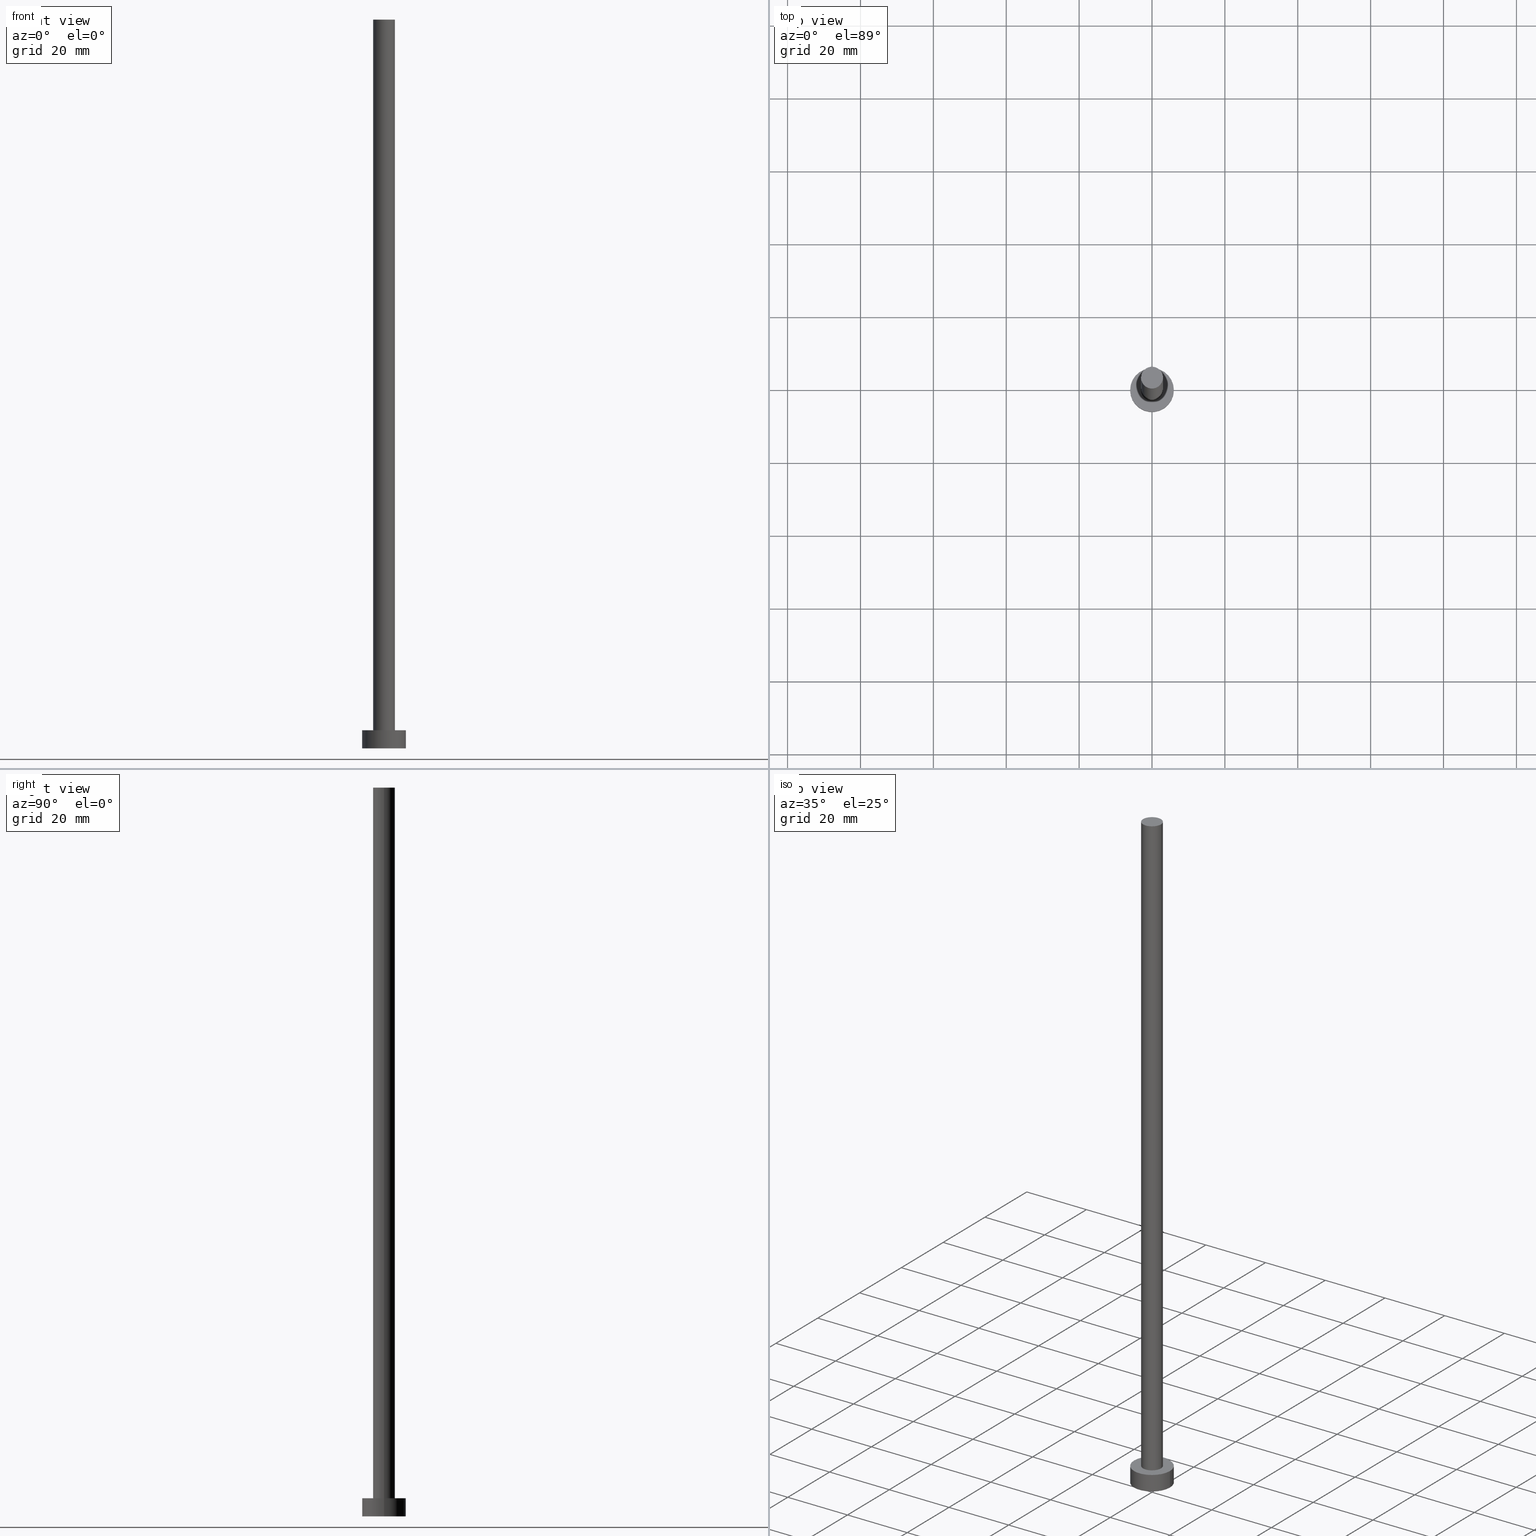
[diagram: canonical four-view strip — front | top / right | iso, engineering-drawing reading convention]
A machine part, canonical four-view strip (front | top / right | iso — engineering-drawing reading convention). The complete STEP part file that produces these views, byte-faithful:
ISO-10303-21;
HEADER;
FILE_DESCRIPTION (( 'STEP AP203' ),
    '1' );
FILE_NAME ('84f4.STEP',
    '2023-02-13T12:38:01',
    ( '' ),
    ( '' ),
    'SwSTEP 2.0',
    'SolidWorks 2019',
    '' );
FILE_SCHEMA (( 'CONFIG_CONTROL_DESIGN' ));
ENDSEC;

DATA;
#1 = DIRECTION ( 'NONE',  ( -0.000000000000000000, -0.000000000000000000, -1.000000000000000000 ) ) ;
#2 = DATE_TIME_ROLE ( 'creation_date' ) ;
#3 = VECTOR ( 'NONE', #108, 1000.000000000000000 ) ;
#4 = ADVANCED_FACE ( 'NONE', ( #241 ), #120, .F. ) ;
#5 = ORIENTED_EDGE ( 'NONE', *, *, #202, .F. ) ;
#6 = PERSON_AND_ORGANIZATION_ROLE ( 'design_supplier' ) ;
#7 = APPROVAL ( #156, 'NEUR�EN�' ) ;
#8 = AXIS2_PLACEMENT_3D ( 'NONE', #247, #142, #224 ) ;
#9 = PLANE ( 'NONE',  #129 ) ;
#10 = FACE_OUTER_BOUND ( 'NONE', #64, .T. ) ;
#11 = VERTEX_POINT ( 'NONE', #62 ) ;
#12 = CARTESIAN_POINT ( 'NONE',  ( 6.000000000000000888, 7.347880794884120722E-16, 5.000000000000000000 ) ) ;
#13 = DIRECTION ( 'NONE',  ( 1.000000000000000000, 0.000000000000000000, 0.000000000000000000 ) ) ;
#14 = LOCAL_TIME ( 13, 38, 1.000000000000000000, #40 ) ;
#15 = COORDINATED_UNIVERSAL_TIME_OFFSET ( 1, 0, .AHEAD. ) ;
#16 =( NAMED_UNIT ( * ) SI_UNIT ( $, .STERADIAN. ) SOLID_ANGLE_UNIT ( ) );
#17 = ORIENTED_EDGE ( 'NONE', *, *, #238, .F. ) ;
#18 = AXIS2_PLACEMENT_3D ( 'NONE', #249, #248, #13 ) ;
#19 = PRODUCT ( '84f4', '84f4', '', ( #88 ) ) ;
#20 = APPROVAL_DATE_TIME ( #166, #217 ) ;
#21 = CALENDAR_DATE ( 2023, 13, 2 ) ;
#22 = ORGANIZATION ( 'NEUR�EN�', 'NEUR�EN�', '' ) ;
#23 = DATE_AND_TIME ( #210, #251 ) ;
#24 = ORIENTED_EDGE ( 'NONE', *, *, #176, .F. ) ;
#25 = EDGE_CURVE ( 'NONE', #153, #157, #72, .T. ) ;
#26 = DIRECTION ( 'NONE',  ( 1.000000000000000000, 0.000000000000000000, 0.000000000000000000 ) ) ;
#27 = MANIFOLD_SOLID_BREP ( 'P�idat vysunut�m3', #112 ) ;
#28 = SHAPE_DEFINITION_REPRESENTATION ( #234, #203 ) ;
#29 = AXIS2_PLACEMENT_3D ( 'NONE', #139, #175, #26 ) ;
#30 = ORIENTED_EDGE ( 'NONE', *, *, #185, .T. ) ;
#31 = PLANE ( 'NONE',  #178 ) ;
#32 = PRODUCT_DEFINITION ( 'NEZN�M�', '', #102, #136 ) ;
#33 = DIRECTION ( 'NONE',  ( 0.000000000000000000, 0.000000000000000000, 1.000000000000000000 ) ) ;
#34 = ORIENTED_EDGE ( 'NONE', *, *, #143, .T. ) ;
#35 = ADVANCED_FACE ( 'NONE', ( #196, #97 ), #9, .T. ) ;
#36 = LINE ( 'NONE', #122, #3 ) ;
#37 = CC_DESIGN_APPROVAL ( #217, ( #32 ) ) ;
#38 = ORIENTED_EDGE ( 'NONE', *, *, #67, .T. ) ;
#39 = CYLINDRICAL_SURFACE ( 'NONE', #41, 6.000000000000000888 ) ;
#40 = COORDINATED_UNIVERSAL_TIME_OFFSET ( 1, 0, .AHEAD. ) ;
#41 = AXIS2_PLACEMENT_3D ( 'NONE', #75, #186, #91 ) ;
#42 = CARTESIAN_POINT ( 'NONE',  ( 0.000000000000000000, 0.000000000000000000, 200.0000000000000000 ) ) ;
#43 = ORIENTED_EDGE ( 'NONE', *, *, #56, .F. ) ;
#44 = CIRCLE ( 'NONE', #82, 6.000000000000000888 ) ;
#45 = ORIENTED_EDGE ( 'NONE', *, *, #104, .T. ) ;
#46 = APPROVAL ( #61, 'NEUR�EN�' ) ;
#47 = SECURITY_CLASSIFICATION_LEVEL ( 'unclassified' ) ;
#48 = CARTESIAN_POINT ( 'NONE',  ( 0.000000000000000000, 0.000000000000000000, 0.000000000000000000 ) ) ;
#49 = SECURITY_CLASSIFICATION ( '', '', #47 ) ;
#50 = AXIS2_PLACEMENT_3D ( 'NONE', #254, #232, #205 ) ;
#51 = LINE ( 'NONE', #177, #106 ) ;
#52 = DIRECTION ( 'NONE',  ( -1.000000000000000000, 0.000000000000000000, 0.000000000000000000 ) ) ;
#53 = DIRECTION ( 'NONE',  ( 1.000000000000000000, 0.000000000000000000, 0.000000000000000000 ) ) ;
#54 = PRODUCT_RELATED_PRODUCT_CATEGORY ( 'detail', '', ( #19 ) ) ;
#55 = APPLICATION_PROTOCOL_DEFINITION ( 'international standard', 'config_control_design', 1994, #81 ) ;
#56 = EDGE_CURVE ( 'NONE', #212, #114, #44, .T. ) ;
#57 = CC_DESIGN_APPROVAL ( #7, ( #102 ) ) ;
#58 = PERSON_AND_ORGANIZATION ( #70, #22 ) ;
#59 = DIRECTION ( 'NONE',  ( 1.000000000000000000, 0.000000000000000000, -0.000000000000000000 ) ) ;
#60 = CIRCLE ( 'NONE', #29, 6.000000000000000888 ) ;
#61 = APPROVAL_STATUS ( 'not_yet_approved' ) ;
#62 = CARTESIAN_POINT ( 'NONE',  ( -3.000000000000000444, 0.000000000000000000, 5.000000000000000000 ) ) ;
#63 = PERSON_AND_ORGANIZATION ( #70, #22 ) ;
#64 = EDGE_LOOP ( 'NONE', ( #170, #74 ) ) ;
#65 = PERSON_AND_ORGANIZATION_ROLE ( 'classification_officer' ) ;
#66 = CARTESIAN_POINT ( 'NONE',  ( 0.000000000000000000, 0.000000000000000000, 200.0000000000000000 ) ) ;
#67 = EDGE_CURVE ( 'NONE', #216, #151, #60, .T. ) ;
#68 = DIRECTION ( 'NONE',  ( 0.000000000000000000, 0.000000000000000000, 1.000000000000000000 ) ) ;
#69 = CC_DESIGN_SECURITY_CLASSIFICATION ( #49, ( #102 ) ) ;
#70 = PERSON ( 'NEUR�EN�', 'NEUR�EN�', 'NEUR�EN�', ('NEUR�EN�'), ('NEUR�EN�'), ('NEUR�EN�') ) ;
#71 = CYLINDRICAL_SURFACE ( 'NONE', #155, 3.000000000000000444 ) ;
#72 = CIRCLE ( 'NONE', #220, 3.000000000000000444 ) ;
#73 = CARTESIAN_POINT ( 'NONE',  ( 3.000000000000000444, 3.673940397442060361E-16, 200.0000000000000000 ) ) ;
#74 = ORIENTED_EDGE ( 'NONE', *, *, #25, .T. ) ;
#75 = CARTESIAN_POINT ( 'NONE',  ( 0.000000000000000000, 0.000000000000000000, 5.000000000000000000 ) ) ;
#76 = ADVANCED_FACE ( 'NONE', ( #159 ), #245, .T. ) ;
#77 = PERSON_AND_ORGANIZATION ( #70, #22 ) ;
#78 = LOCAL_TIME ( 13, 38, 1.000000000000000000, #152 ) ;
#79 = DATE_AND_TIME ( #21, #130 ) ;
#80 = DIRECTION ( 'NONE',  ( 0.000000000000000000, 0.000000000000000000, 1.000000000000000000 ) ) ;
#81 = APPLICATION_CONTEXT ( 'configuration controlled 3d designs of mechanical parts and assemblies' ) ;
#82 = AXIS2_PLACEMENT_3D ( 'NONE', #103, #137, #194 ) ;
#83 = FACE_OUTER_BOUND ( 'NONE', #133, .T. ) ;
#84 = EDGE_CURVE ( 'NONE', #114, #212, #200, .T. ) ;
#85 = CC_DESIGN_APPROVAL ( #46, ( #49 ) ) ;
#86 = DIRECTION ( 'NONE',  ( -0.000000000000000000, -0.000000000000000000, -1.000000000000000000 ) ) ;
#87 = ORIENTED_EDGE ( 'NONE', *, *, #233, .T. ) ;
#88 = MECHANICAL_CONTEXT ( 'NONE', #81, 'mechanical' ) ;
#89 = ORIENTED_EDGE ( 'NONE', *, *, #238, .T. ) ;
#90 = AXIS2_PLACEMENT_3D ( 'NONE', #48, #68, #140 ) ;
#91 = DIRECTION ( 'NONE',  ( -1.000000000000000000, 0.000000000000000000, 0.000000000000000000 ) ) ;
#92 = PERSON_AND_ORGANIZATION_ROLE ( 'creator' ) ;
#93 = CIRCLE ( 'NONE', #124, 3.000000000000000444 ) ;
#94 = VERTEX_POINT ( 'NONE', #223 ) ;
#95 = CC_DESIGN_DATE_AND_TIME_ASSIGNMENT ( #131, #2, ( #32 ) ) ;
#96 = CALENDAR_DATE ( 2023, 13, 2 ) ;
#97 = FACE_OUTER_BOUND ( 'NONE', #167, .T. ) ;
#98 = COORDINATED_UNIVERSAL_TIME_OFFSET ( 1, 0, .AHEAD. ) ;
#99 = DIRECTION ( 'NONE',  ( -0.000000000000000000, -0.000000000000000000, -1.000000000000000000 ) ) ;
#100 = DIRECTION ( 'NONE',  ( 0.000000000000000000, 0.000000000000000000, 1.000000000000000000 ) ) ;
#101 = CC_DESIGN_PERSON_AND_ORGANIZATION_ASSIGNMENT ( #63, #138, ( #102 ) ) ;
#102 = PRODUCT_DEFINITION_FORMATION_WITH_SPECIFIED_SOURCE ( 'LIBOVOLN�', '', #19, .NOT_KNOWN. ) ;
#103 = CARTESIAN_POINT ( 'NONE',  ( 0.000000000000000000, 0.000000000000000000, 0.000000000000000000 ) ) ;
#104 = EDGE_CURVE ( 'NONE', #151, #114, #51, .T. ) ;
#105 = DIRECTION ( 'NONE',  ( 1.000000000000000000, 0.000000000000000000, 0.000000000000000000 ) ) ;
#106 = VECTOR ( 'NONE', #121, 1000.000000000000000 ) ;
#107 = CC_DESIGN_PERSON_AND_ORGANIZATION_ASSIGNMENT ( #240, #6, ( #102 ) ) ;
#108 = DIRECTION ( 'NONE',  ( -0.000000000000000000, -0.000000000000000000, -1.000000000000000000 ) ) ;
#109 = EDGE_LOOP ( 'NONE', ( #119, #45, #235, #150 ) ) ;
#110 = CARTESIAN_POINT ( 'NONE',  ( -3.000000000000000444, 0.000000000000000000, 200.0000000000000000 ) ) ;
#111 = CARTESIAN_POINT ( 'NONE',  ( -6.000000000000000888, 0.000000000000000000, 5.000000000000000000 ) ) ;
#112 = CLOSED_SHELL ( 'NONE', ( #76, #225, #188, #35, #4, #145, #116 ) ) ;
#113 = LINE ( 'NONE', #110, #231 ) ;
#114 = VERTEX_POINT ( 'NONE', #198 ) ;
#115 =( LENGTH_UNIT ( ) NAMED_UNIT ( * ) SI_UNIT ( .MILLI., .METRE. ) );
#116 = ADVANCED_FACE ( 'NONE', ( #10 ), #31, .T. ) ;
#117 = AXIS2_PLACEMENT_3D ( 'NONE', #199, #33, #105 ) ;
#118 = CARTESIAN_POINT ( 'NONE',  ( 0.000000000000000000, 0.000000000000000000, 200.0000000000000000 ) ) ;
#119 = ORIENTED_EDGE ( 'NONE', *, *, #143, .F. ) ;
#120 = PLANE ( 'NONE',  #190 ) ;
#121 = DIRECTION ( 'NONE',  ( -0.000000000000000000, -0.000000000000000000, -1.000000000000000000 ) ) ;
#122 = CARTESIAN_POINT ( 'NONE',  ( 3.000000000000000444, 3.673940397442060361E-16, 200.0000000000000000 ) ) ;
#123 = CIRCLE ( 'NONE', #18, 6.000000000000000888 ) ;
#124 = AXIS2_PLACEMENT_3D ( 'NONE', #42, #147, #252 ) ;
#125 =( NAMED_UNIT ( * ) PLANE_ANGLE_UNIT ( ) SI_UNIT ( $, .RADIAN. ) );
#126 = CC_DESIGN_PERSON_AND_ORGANIZATION_ASSIGNMENT ( #193, #65, ( #49 ) ) ;
#127 = PERSON_AND_ORGANIZATION_ROLE ( 'design_owner' ) ;
#128 = ORIENTED_EDGE ( 'NONE', *, *, #202, .T. ) ;
#129 = AXIS2_PLACEMENT_3D ( 'NONE', #171, #174, #192 ) ;
#130 = LOCAL_TIME ( 13, 38, 1.000000000000000000, #98 ) ;
#131 = DATE_AND_TIME ( #149, #14 ) ;
#132 = ORIENTED_EDGE ( 'NONE', *, *, #176, .T. ) ;
#133 = EDGE_LOOP ( 'NONE', ( #255, #184, #87, #226 ) ) ;
#134 = DATE_AND_TIME ( #96, #78 ) ;
#135 = DIRECTION ( 'NONE',  ( 0.000000000000000000, 0.000000000000000000, 1.000000000000000000 ) ) ;
#136 = DESIGN_CONTEXT ( 'detailed design', #230, 'design' ) ;
#137 = DIRECTION ( 'NONE',  ( 0.000000000000000000, 0.000000000000000000, 1.000000000000000000 ) ) ;
#138 = PERSON_AND_ORGANIZATION_ROLE ( 'creator' ) ;
#139 = CARTESIAN_POINT ( 'NONE',  ( 0.000000000000000000, 0.000000000000000000, 5.000000000000000000 ) ) ;
#140 = DIRECTION ( 'NONE',  ( 1.000000000000000000, 0.000000000000000000, 0.000000000000000000 ) ) ;
#141 = CIRCLE ( 'NONE', #117, 3.000000000000000444 ) ;
#142 = DIRECTION ( 'NONE',  ( -0.000000000000000000, -0.000000000000000000, -1.000000000000000000 ) ) ;
#143 = EDGE_CURVE ( 'NONE', #151, #216, #123, .T. ) ;
#144 = FACE_OUTER_BOUND ( 'NONE', #215, .T. ) ;
#145 = ADVANCED_FACE ( 'NONE', ( #144 ), #71, .T. ) ;
#146 = APPROVAL_PERSON_ORGANIZATION ( #58, #7, #172 ) ;
#147 = DIRECTION ( 'NONE',  ( 0.000000000000000000, 0.000000000000000000, 1.000000000000000000 ) ) ;
#148 = APPROVAL_STATUS ( 'not_yet_approved' ) ;
#149 = CALENDAR_DATE ( 2023, 13, 2 ) ;
#150 = ORIENTED_EDGE ( 'NONE', *, *, #233, .F. ) ;
#151 = VERTEX_POINT ( 'NONE', #12 ) ;
#152 = COORDINATED_UNIVERSAL_TIME_OFFSET ( 1, 0, .AHEAD. ) ;
#153 = VERTEX_POINT ( 'NONE', #73 ) ;
#154 = EDGE_LOOP ( 'NONE', ( #24, #5 ) ) ;
#155 = AXIS2_PLACEMENT_3D ( 'NONE', #180, #181, #52 ) ;
#156 = APPROVAL_STATUS ( 'not_yet_approved' ) ;
#157 = VERTEX_POINT ( 'NONE', #227 ) ;
#158 = CARTESIAN_POINT ( 'NONE',  ( 0.000000000000000000, 0.000000000000000000, 0.000000000000000000 ) ) ;
#159 = FACE_OUTER_BOUND ( 'NONE', #236, .T. ) ;
#160 = LOCAL_TIME ( 13, 38, 1.000000000000000000, #15 ) ;
#161 = CYLINDRICAL_SURFACE ( 'NONE', #8, 6.000000000000000888 ) ;
#162 = CALENDAR_DATE ( 2023, 13, 2 ) ;
#163 = ORIENTED_EDGE ( 'NONE', *, *, #25, .F. ) ;
#164 = LINE ( 'NONE', #229, #206 ) ;
#165 = EDGE_LOOP ( 'NONE', ( #43, #209 ) ) ;
#166 = DATE_AND_TIME ( #162, #160 ) ;
#167 = EDGE_LOOP ( 'NONE', ( #38, #34 ) ) ;
#168 = CC_DESIGN_PERSON_AND_ORGANIZATION_ASSIGNMENT ( #77, #92, ( #32 ) ) ;
#169 =( GEOMETRIC_REPRESENTATION_CONTEXT ( 3 ) GLOBAL_UNCERTAINTY_ASSIGNED_CONTEXT ( ( #211 ) ) GLOBAL_UNIT_ASSIGNED_CONTEXT ( ( #115, #125, #16 ) ) REPRESENTATION_CONTEXT ( 'NONE', 'WORKASPACE' ) );
#170 = ORIENTED_EDGE ( 'NONE', *, *, #246, .T. ) ;
#171 = CARTESIAN_POINT ( 'NONE',  ( 0.000000000000000000, 0.000000000000000000, 5.000000000000000000 ) ) ;
#172 = APPROVAL_ROLE ( '' ) ;
#173 = DIRECTION ( 'NONE',  ( -1.000000000000000000, 0.000000000000000000, 0.000000000000000000 ) ) ;
#174 = DIRECTION ( 'NONE',  ( 0.000000000000000000, 0.000000000000000000, 1.000000000000000000 ) ) ;
#175 = DIRECTION ( 'NONE',  ( 0.000000000000000000, 0.000000000000000000, 1.000000000000000000 ) ) ;
#176 = EDGE_CURVE ( 'NONE', #11, #94, #213, .T. ) ;
#177 = CARTESIAN_POINT ( 'NONE',  ( 6.000000000000000888, 7.347880794884120722E-16, 5.000000000000000000 ) ) ;
#178 = AXIS2_PLACEMENT_3D ( 'NONE', #239, #135, #59 ) ;
#179 = CARTESIAN_POINT ( 'NONE',  ( -6.000000000000000888, 0.000000000000000000, 0.000000000000000000 ) ) ;
#180 = CARTESIAN_POINT ( 'NONE',  ( 0.000000000000000000, 0.000000000000000000, 200.0000000000000000 ) ) ;
#181 = DIRECTION ( 'NONE',  ( -0.000000000000000000, -0.000000000000000000, -1.000000000000000000 ) ) ;
#182 = APPROVAL_PERSON_ORGANIZATION ( #195, #46, #218 ) ;
#183 = APPROVAL_PERSON_ORGANIZATION ( #208, #217, #189 ) ;
#184 = ORIENTED_EDGE ( 'NONE', *, *, #67, .F. ) ;
#185 = EDGE_CURVE ( 'NONE', #153, #94, #36, .T. ) ;
#186 = DIRECTION ( 'NONE',  ( -0.000000000000000000, -0.000000000000000000, -1.000000000000000000 ) ) ;
#187 = FACE_OUTER_BOUND ( 'NONE', #109, .T. ) ;
#188 = ADVANCED_FACE ( 'NONE', ( #83 ), #161, .T. ) ;
#189 = APPROVAL_ROLE ( '' ) ;
#190 = AXIS2_PLACEMENT_3D ( 'NONE', #158, #100, #243 ) ;
#191 = CC_DESIGN_PERSON_AND_ORGANIZATION_ASSIGNMENT ( #207, #127, ( #19 ) ) ;
#192 = DIRECTION ( 'NONE',  ( 1.000000000000000000, 0.000000000000000000, -0.000000000000000000 ) ) ;
#193 = PERSON_AND_ORGANIZATION ( #70, #22 ) ;
#194 = DIRECTION ( 'NONE',  ( 1.000000000000000000, 0.000000000000000000, 0.000000000000000000 ) ) ;
#195 = PERSON_AND_ORGANIZATION ( #70, #22 ) ;
#196 = FACE_BOUND ( 'NONE', #154, .T. ) ;
#197 = CC_DESIGN_DATE_AND_TIME_ASSIGNMENT ( #79, #214, ( #49 ) ) ;
#198 = CARTESIAN_POINT ( 'NONE',  ( 6.000000000000000888, 7.347880794884120722E-16, 0.000000000000000000 ) ) ;
#199 = CARTESIAN_POINT ( 'NONE',  ( 0.000000000000000000, 0.000000000000000000, 5.000000000000000000 ) ) ;
#200 = CIRCLE ( 'NONE', #90, 6.000000000000000888 ) ;
#201 = DIRECTION ( 'NONE',  ( 0.000000000000000000, 0.000000000000000000, 1.000000000000000000 ) ) ;
#202 = EDGE_CURVE ( 'NONE', #94, #11, #141, .T. ) ;
#203 = ADVANCED_BREP_SHAPE_REPRESENTATION ( '84f4', ( #27, #50 ), #169 ) ;
#204 = APPLICATION_PROTOCOL_DEFINITION ( 'international standard', 'config_control_design', 1994, #230 ) ;
#205 = DIRECTION ( 'NONE',  ( 1.000000000000000000, 0.000000000000000000, 0.000000000000000000 ) ) ;
#206 = VECTOR ( 'NONE', #1, 1000.000000000000000 ) ;
#207 = PERSON_AND_ORGANIZATION ( #70, #22 ) ;
#208 = PERSON_AND_ORGANIZATION ( #70, #22 ) ;
#209 = ORIENTED_EDGE ( 'NONE', *, *, #84, .F. ) ;
#210 = CALENDAR_DATE ( 2023, 13, 2 ) ;
#211 = UNCERTAINTY_MEASURE_WITH_UNIT (LENGTH_MEASURE( 1.000000000000000082E-05 ), #115, 'distance_accuracy_value', 'NONE');
#212 = VERTEX_POINT ( 'NONE', #179 ) ;
#213 = CIRCLE ( 'NONE', #221, 3.000000000000000444 ) ;
#214 = DATE_TIME_ROLE ( 'classification_date' ) ;
#215 = EDGE_LOOP ( 'NONE', ( #244, #253, #89, #132 ) ) ;
#216 = VERTEX_POINT ( 'NONE', #111 ) ;
#217 = APPROVAL ( #148, 'NEUR�EN�' ) ;
#218 = APPROVAL_ROLE ( '' ) ;
#219 = DIRECTION ( 'NONE',  ( 1.000000000000000000, 0.000000000000000000, 0.000000000000000000 ) ) ;
#220 = AXIS2_PLACEMENT_3D ( 'NONE', #66, #80, #219 ) ;
#221 = AXIS2_PLACEMENT_3D ( 'NONE', #250, #201, #53 ) ;
#222 = COORDINATED_UNIVERSAL_TIME_OFFSET ( 1, 0, .AHEAD. ) ;
#223 = CARTESIAN_POINT ( 'NONE',  ( 3.000000000000000444, 3.673940397442060361E-16, 5.000000000000000000 ) ) ;
#224 = DIRECTION ( 'NONE',  ( -1.000000000000000000, 0.000000000000000000, 0.000000000000000000 ) ) ;
#225 = ADVANCED_FACE ( 'NONE', ( #187 ), #39, .T. ) ;
#226 = ORIENTED_EDGE ( 'NONE', *, *, #56, .T. ) ;
#227 = CARTESIAN_POINT ( 'NONE',  ( -3.000000000000000444, 0.000000000000000000, 200.0000000000000000 ) ) ;
#228 = AXIS2_PLACEMENT_3D ( 'NONE', #118, #99, #173 ) ;
#229 = CARTESIAN_POINT ( 'NONE',  ( -6.000000000000000888, 0.000000000000000000, 5.000000000000000000 ) ) ;
#230 = APPLICATION_CONTEXT ( 'configuration controlled 3d designs of mechanical parts and assemblies' ) ;
#231 = VECTOR ( 'NONE', #86, 1000.000000000000000 ) ;
#232 = DIRECTION ( 'NONE',  ( 0.000000000000000000, 0.000000000000000000, 1.000000000000000000 ) ) ;
#233 = EDGE_CURVE ( 'NONE', #216, #212, #164, .T. ) ;
#234 = PRODUCT_DEFINITION_SHAPE ( 'NONE', 'NONE',  #32 ) ;
#235 = ORIENTED_EDGE ( 'NONE', *, *, #84, .T. ) ;
#236 = EDGE_LOOP ( 'NONE', ( #163, #30, #128, #17 ) ) ;
#237 = APPROVAL_DATE_TIME ( #134, #46 ) ;
#238 = EDGE_CURVE ( 'NONE', #157, #11, #113, .T. ) ;
#239 = CARTESIAN_POINT ( 'NONE',  ( 0.000000000000000000, 0.000000000000000000, 200.0000000000000000 ) ) ;
#240 = PERSON_AND_ORGANIZATION ( #70, #22 ) ;
#241 = FACE_OUTER_BOUND ( 'NONE', #165, .T. ) ;
#242 = APPROVAL_DATE_TIME ( #23, #7 ) ;
#243 = DIRECTION ( 'NONE',  ( 1.000000000000000000, 0.000000000000000000, -0.000000000000000000 ) ) ;
#244 = ORIENTED_EDGE ( 'NONE', *, *, #185, .F. ) ;
#245 = CYLINDRICAL_SURFACE ( 'NONE', #228, 3.000000000000000444 ) ;
#246 = EDGE_CURVE ( 'NONE', #157, #153, #93, .T. ) ;
#247 = CARTESIAN_POINT ( 'NONE',  ( 0.000000000000000000, 0.000000000000000000, 5.000000000000000000 ) ) ;
#248 = DIRECTION ( 'NONE',  ( 0.000000000000000000, 0.000000000000000000, 1.000000000000000000 ) ) ;
#249 = CARTESIAN_POINT ( 'NONE',  ( 0.000000000000000000, 0.000000000000000000, 5.000000000000000000 ) ) ;
#250 = CARTESIAN_POINT ( 'NONE',  ( 0.000000000000000000, 0.000000000000000000, 5.000000000000000000 ) ) ;
#251 = LOCAL_TIME ( 13, 38, 1.000000000000000000, #222 ) ;
#252 = DIRECTION ( 'NONE',  ( 1.000000000000000000, 0.000000000000000000, 0.000000000000000000 ) ) ;
#253 = ORIENTED_EDGE ( 'NONE', *, *, #246, .F. ) ;
#254 = CARTESIAN_POINT ( 'NONE',  ( 0.000000000000000000, 0.000000000000000000, 0.000000000000000000 ) ) ;
#255 = ORIENTED_EDGE ( 'NONE', *, *, #104, .F. ) ;
ENDSEC;
END-ISO-10303-21;
